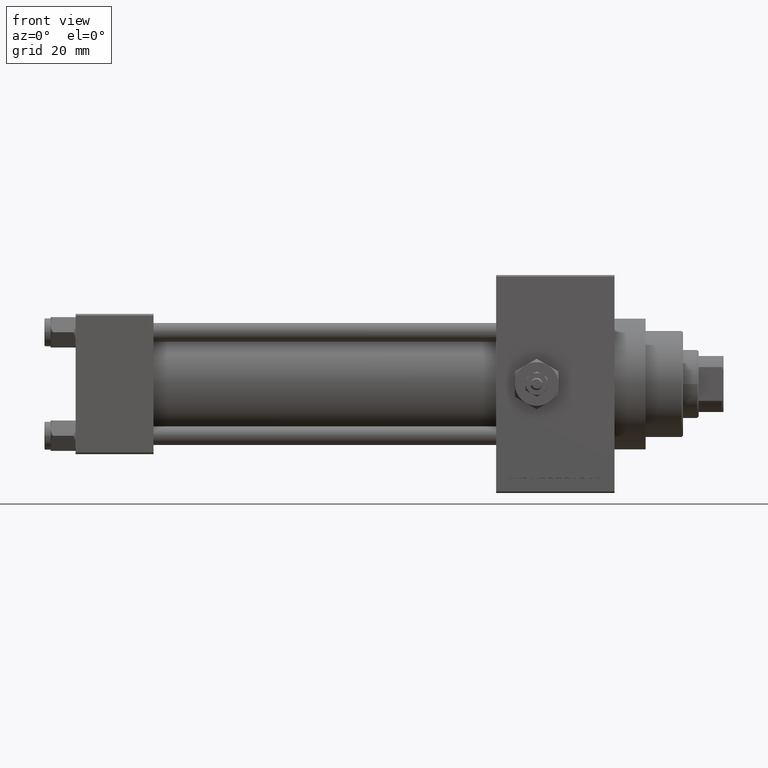
[diagram: clean part render]
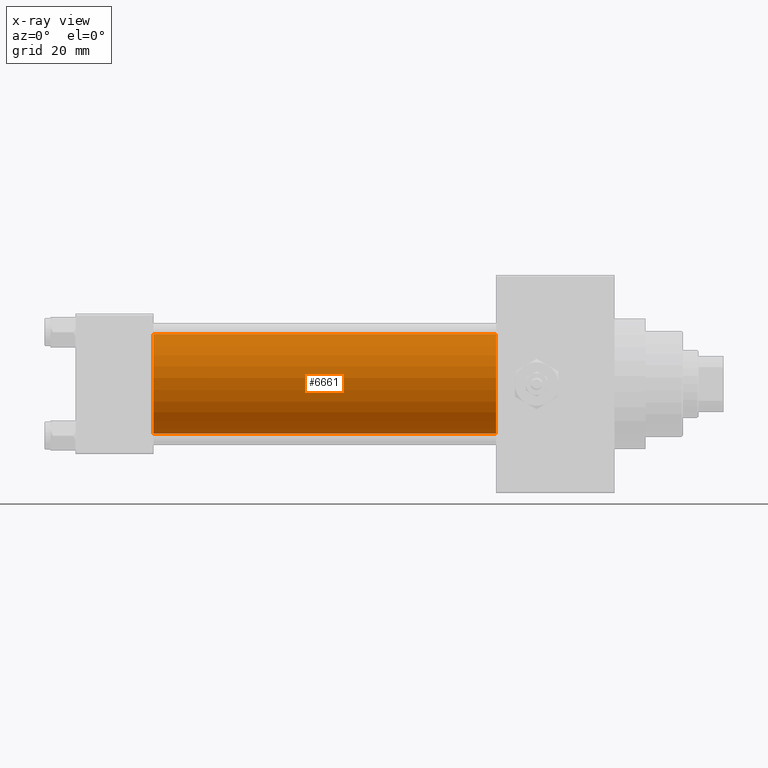
[diagram: x-ray — body ghosted, one internal face saturated and labeled with its STEP entity id]
A machine part, front view, then the same camera in x-ray: the body is ghosted and one INTERNAL B-rep face — a face not visible from any outside direction — is saturated and labeled: STEP entity #6661.
In plain terms, the highlighted cylindrical surface (partial cylindrical patch) has radius 16 mm, axis along (-1, -0, -0).
Its self-contained STEP definition (entity closure, byte-faithful):
#4218 = EDGE_CURVE ( 'NONE', #46214, #44312, #21874, .T. ) ;
#4255 = FACE_OUTER_BOUND ( 'NONE', #47098, .T. ) ;
#5653 = DIRECTION ( 'NONE',  ( 1.000000000000000000, 0.000000000000000000, 0.000000000000000000 ) ) ;
#6661 = ADVANCED_FACE ( 'NONE', ( #4255 ), #45203, .F. ) ;
#7484 = DIRECTION ( 'NONE',  ( -1.000000000000000000, -0.000000000000000000, -0.000000000000000000 ) ) ;
#7705 = AXIS2_PLACEMENT_3D ( 'NONE', #7720, #7484, #37125 ) ;
#7720 = CARTESIAN_POINT ( 'NONE',  ( 135.0000000000000000, -2.602085213965210642E-15, 0.000000000000000000 ) ) ;
#12194 = CARTESIAN_POINT ( 'NONE',  ( 135.0000000000000000, -6.426503353294456087E-16, -16.00000000000000000 ) ) ;
#13795 = DIRECTION ( 'NONE',  ( 0.000000000000000000, 0.000000000000000000, -1.000000000000000000 ) ) ;
#14747 = CIRCLE ( 'NONE', #16349, 16.00000000000000000 ) ;
#16349 = AXIS2_PLACEMENT_3D ( 'NONE', #30458, #30954, #46201 ) ;
#16987 = VERTEX_POINT ( 'NONE', #48238 ) ;
#18751 = CARTESIAN_POINT ( 'NONE',  ( 25.00000000000000000, -6.426503353294456087E-16, -16.00000000000000000 ) ) ;
#19727 = EDGE_CURVE ( 'NONE', #43059, #44312, #33478, .T. ) ;
#21874 = LINE ( 'NONE', #44288, #32849 ) ;
#25088 = DIRECTION ( 'NONE',  ( -1.000000000000000000, -0.000000000000000000, -0.000000000000000000 ) ) ;
#25115 = LINE ( 'NONE', #40144, #28893 ) ;
#27427 = EDGE_CURVE ( 'NONE', #16987, #43059, #25115, .T. ) ;
#27841 = DIRECTION ( 'NONE',  ( -1.000000000000000000, -0.000000000000000000, -0.000000000000000000 ) ) ;
#28893 = VECTOR ( 'NONE', #27841, 1000.000000000000000 ) ;
#28912 = EDGE_CURVE ( 'NONE', #16987, #46214, #14747, .T. ) ;
#30458 = CARTESIAN_POINT ( 'NONE',  ( 135.0000000000000000, -2.602085213965210642E-15, 0.000000000000000000 ) ) ;
#30954 = DIRECTION ( 'NONE',  ( 1.000000000000000000, 0.000000000000000000, 0.000000000000000000 ) ) ;
#32849 = VECTOR ( 'NONE', #25088, 1000.000000000000000 ) ;
#33478 = CIRCLE ( 'NONE', #38214, 16.00000000000000000 ) ;
#36533 = ORIENTED_EDGE ( 'NONE', *, *, #28912, .T. ) ;
#37125 = DIRECTION ( 'NONE',  ( 0.000000000000000000, 0.000000000000000000, 1.000000000000000000 ) ) ;
#38154 = ORIENTED_EDGE ( 'NONE', *, *, #4218, .T. ) ;
#38214 = AXIS2_PLACEMENT_3D ( 'NONE', #44124, #5653, #13795 ) ;
#39486 = ORIENTED_EDGE ( 'NONE', *, *, #19727, .F. ) ;
#40144 = CARTESIAN_POINT ( 'NONE',  ( 135.0000000000000000, -2.602085213965210642E-15, 16.00000000000000000 ) ) ;
#41955 = CARTESIAN_POINT ( 'NONE',  ( 25.00000000000000000, -2.602085213965210642E-15, 16.00000000000000000 ) ) ;
#43059 = VERTEX_POINT ( 'NONE', #41955 ) ;
#44124 = CARTESIAN_POINT ( 'NONE',  ( 25.00000000000000000, -2.602085213965210642E-15, 0.000000000000000000 ) ) ;
#44288 = CARTESIAN_POINT ( 'NONE',  ( 135.0000000000000000, -6.426503353294456087E-16, -16.00000000000000000 ) ) ;
#44312 = VERTEX_POINT ( 'NONE', #18751 ) ;
#45203 = CYLINDRICAL_SURFACE ( 'NONE', #7705, 16.00000000000000000 ) ;
#46155 = ORIENTED_EDGE ( 'NONE', *, *, #27427, .F. ) ;
#46201 = DIRECTION ( 'NONE',  ( 0.000000000000000000, 0.000000000000000000, -1.000000000000000000 ) ) ;
#46214 = VERTEX_POINT ( 'NONE', #12194 ) ;
#47098 = EDGE_LOOP ( 'NONE', ( #36533, #38154, #39486, #46155 ) ) ;
#48238 = CARTESIAN_POINT ( 'NONE',  ( 135.0000000000000000, -2.602085213965210642E-15, 16.00000000000000000 ) ) ;